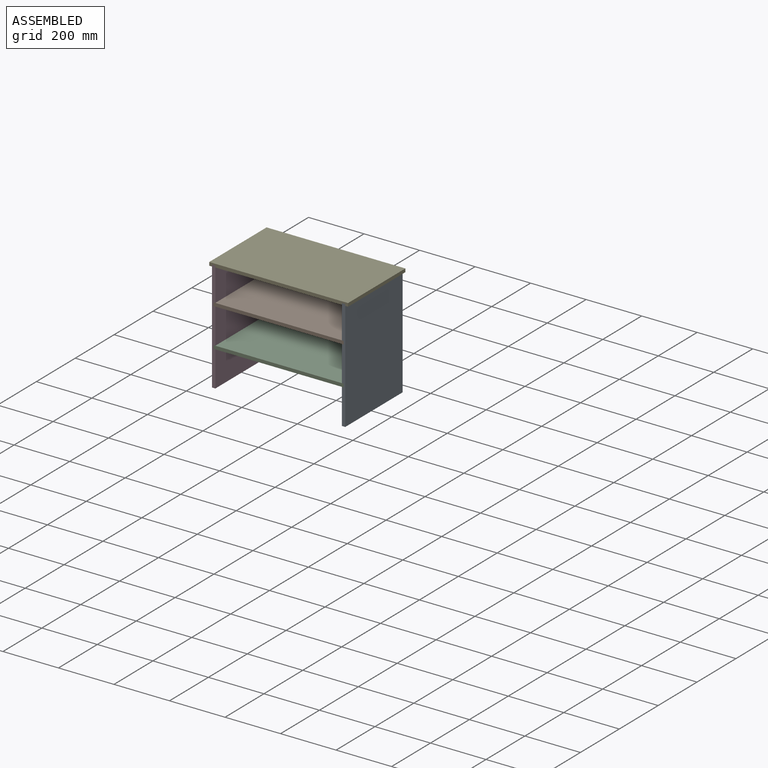
[diagram: assembled view]
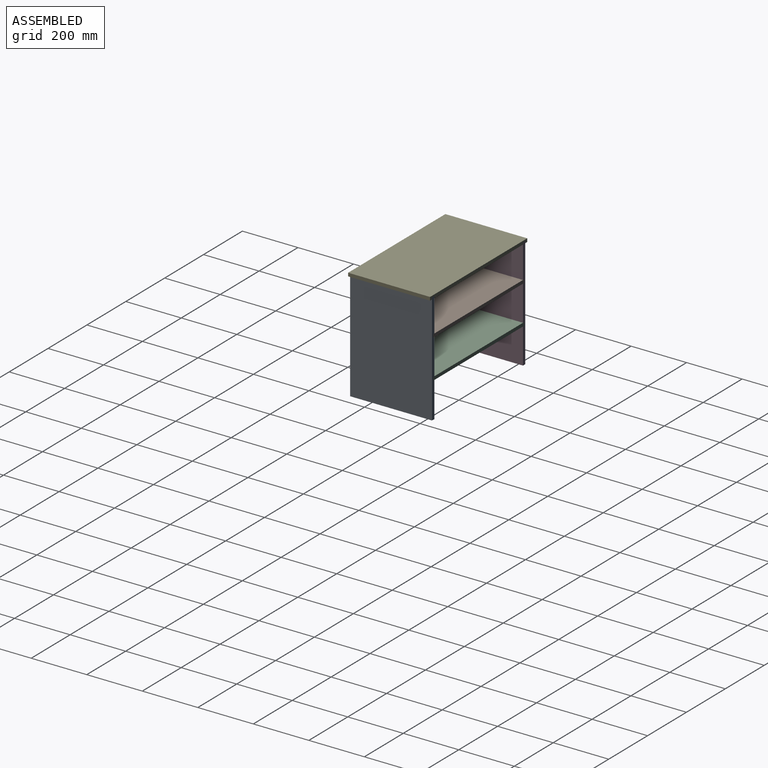
[diagram: assembled view, second angle]
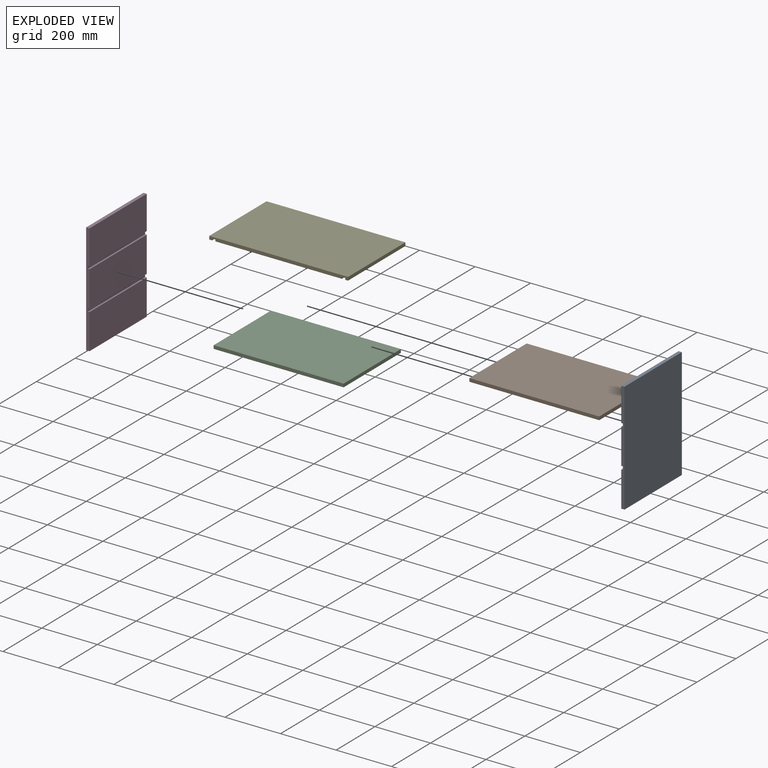
[diagram: exploded view]
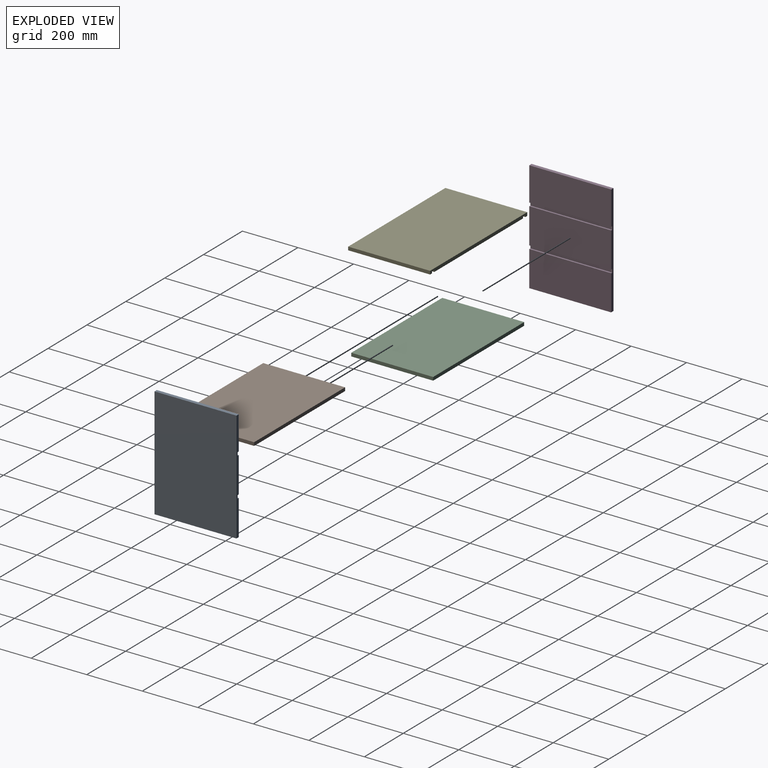
[diagram: exploded view, second angle]
ASSEMBLY  parts=5 mates=4
PART A: 14 faces, bbox 12x295x400 mm
  f0: plane 295x127.33mm, normal (1,0,0), area 37563.3mm2, adj f2,f4,f9,f11
  f1: plane 295x121.33mm, normal (1,0,0), area 35793.3mm2, adj f2,f4,f5,f8
  f2: plane 400x12mm, normal (0,-1,0), area 4656mm2, adj f0,f1,f3,f5,f6,f7,f8,f9
  f3: plane 295x12mm, normal (0,0,-1), area 3540mm2, adj f2,f4,f6,f7
  f4: plane 400x12mm, normal (0,1,0), area 4656mm2, adj f0,f1,f3,f5,f6,f7,f8,f9
  f5: plane 295x12mm, normal (0,0,1), area 3540mm2, adj f1,f2,f4,f7
  f6: plane 295x127.33mm, normal (1,0,0), area 37563.3mm2, adj f2,f3,f4,f12
  f7: plane 400x295mm, normal (-1,0,0), area 118000mm2, adj f2,f3,f4,f5
  f8: plane 295x6mm, normal (0,0,-1), area 1770mm2, adj f1,f2,f4,f10
  f9: plane 295x6mm, normal (0,0,1), area 1770mm2, adj f0,f2,f4,f10
  f10: plane 295x12mm, normal (1,0,0), area 3540mm2, adj f2,f4,f8,f9
  f11: plane 295x6mm, normal (0,0,-1), area 1770mm2, adj f0,f2,f4,f13
  f12: plane 295x6mm, normal (0,0,1), area 1770mm2, adj f2,f4,f6,f13
  f13: plane 295x12mm, normal (1,0,0), area 3540mm2, adj f2,f4,f11,f12
PART B: 6 faces, bbox 468x295x12 mm
  f0: plane 295x12mm, normal (-1,0,0), area 3540mm2, adj f1,f3,f4,f5
  f1: plane 468x12mm, normal (0,-1,0), area 5616mm2, adj f0,f2,f4,f5
  f2: plane 295x12mm, normal (1,0,0), area 3540mm2, adj f1,f3,f4,f5
  f3: plane 468x12mm, normal (0,1,0), area 5616mm2, adj f0,f2,f4,f5
  f4: plane 468x295mm, normal (0,0,1), area 138060mm2, adj f0,f1,f2,f3
  f5: plane 468x295mm, normal (0,0,-1), area 138060mm2, adj f0,f1,f2,f3
PART C: same geometry as B
PART D: same geometry as A
PART E: 14 faces, bbox 500x295x12 mm
  f0: plane 295x10mm, normal (0,0,-1), area 2950mm2, adj f2,f3,f4,f11
  f1: plane 456x295mm, normal (0,0,-1), area 134520mm2, adj f2,f4,f8,f12
  f2: plane 500x12mm, normal (0,1,0), area 5856mm2, adj f0,f1,f3,f5,f6,f7,f8,f9
  f3: plane 295x12mm, normal (-1,0,0), area 3540mm2, adj f0,f2,f4,f6
  f4: plane 500x12mm, normal (0,-1,0), area 5856mm2, adj f0,f1,f3,f5,f6,f7,f8,f9
  f5: plane 295x12mm, normal (1,0,0), area 3540mm2, adj f2,f4,f6,f7
  f6: plane 500x295mm, normal (0,0,1), area 147500mm2, adj f2,f3,f4,f5
  f7: plane 295x10mm, normal (0,0,-1), area 2950mm2, adj f2,f4,f5,f9
  f8: plane 295x6mm, normal (1,0,0), area 1770mm2, adj f1,f2,f4,f10
  f9: plane 295x6mm, normal (-1,0,0), area 1770mm2, adj f2,f4,f7,f10
  f10: plane 295x12mm, normal (0,0,-1), area 3540mm2, adj f2,f4,f8,f9
  f11: plane 295x6mm, normal (1,0,0), area 1770mm2, adj f0,f2,f4,f13
  f12: plane 295x6mm, normal (-1,0,0), area 1770mm2, adj f1,f2,f4,f13
  f13: plane 295x12mm, normal (0,0,-1), area 3540mm2, adj f2,f4,f11,f12
PLACE A rot(axis=(0,0,-1),180deg) t=(-283.94,909.66,-449.77)mm
PLACE B t=(-757.94,909.66,-183.1)mm
PLACE C t=(-757.94,909.66,-322.43)mm
PLACE D t=(-763.94,1204.66,-449.77)mm
PLACE E t=(-773.94,909.66,-55.77)mm
MATE fastened B.f0 <-> D.f10  axis (-1,0,0) through (-757.94,1057.16,-177.1)mm
MATE fastened C.f0 <-> D.f13  axis (-1,0,0) through (-757.94,1057.16,-316.43)mm
MATE fastened E.f10 <-> A.f5  axis (0,0,-1) through (-289.94,1057.16,-49.77)mm
MATE fastened D.f5 <-> E.f13  axis (0,0,1) through (-757.94,1057.16,-49.77)mm
